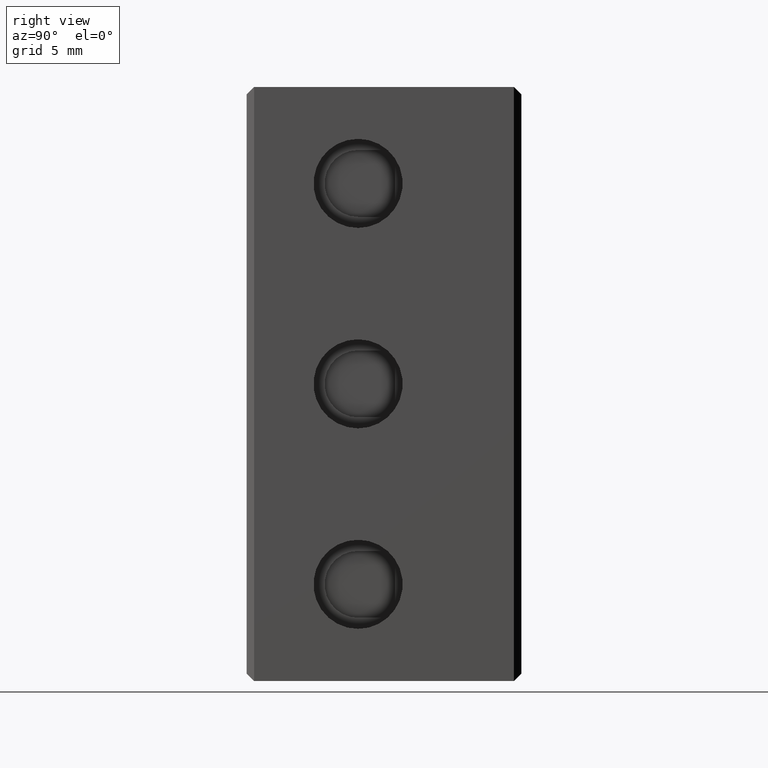
[diagram: clean part render]
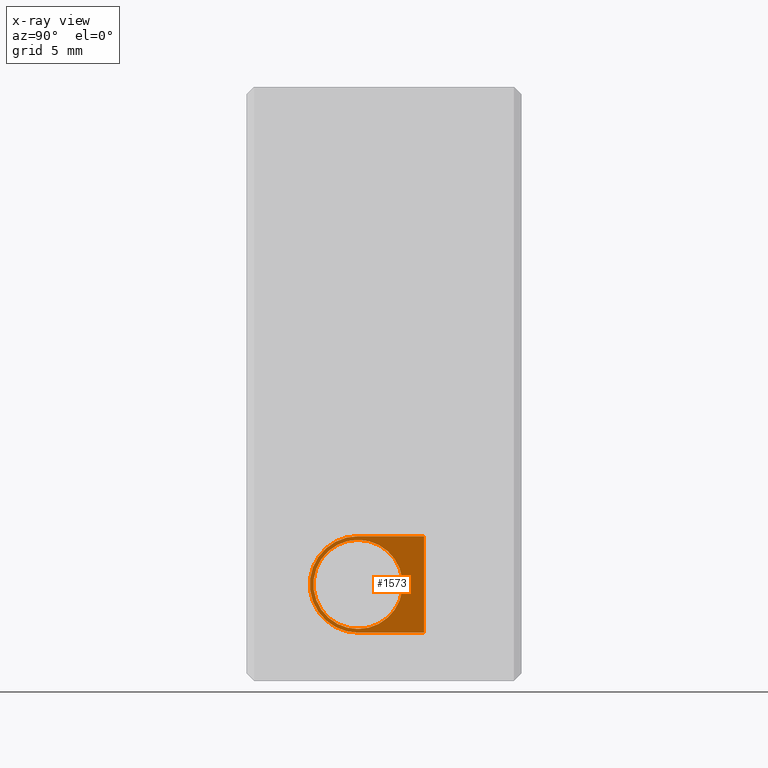
[diagram: x-ray — body ghosted, one internal face saturated and labeled with its STEP entity id]
A machine part, right view, then the same camera in x-ray: the body is ghosted and one INTERNAL B-rep face — a face not visible from any outside direction — is saturated and labeled: STEP entity #1573.
In plain terms, the highlighted planar face has unit normal (1, -0, 0).
Its self-contained STEP definition (entity closure, byte-faithful):
#172 = EDGE_LOOP ( 'NONE', ( #4283, #4260 ) ) ;
#264 = EDGE_LOOP ( 'NONE', ( #4213, #4229, #4239, #4277 ) ) ;
#369 = VERTEX_POINT ( 'NONE', #5477 ) ;
#397 = VERTEX_POINT ( 'NONE', #5500 ) ;
#406 = VERTEX_POINT ( 'NONE', #4571 ) ;
#408 = VERTEX_POINT ( 'NONE', #4561 ) ;
#698 = VERTEX_POINT ( 'NONE', #4858 ) ;
#711 = VERTEX_POINT ( 'NONE', #4898 ) ;
#930 = EDGE_CURVE ( 'NONE', #369, #397, #5458, .T. ) ;
#934 = EDGE_CURVE ( 'NONE', #406, #369, #2957, .T. ) ;
#960 = EDGE_CURVE ( 'NONE', #397, #408, #2341, .T. ) ;
#969 = EDGE_CURVE ( 'NONE', #408, #406, #2368, .T. ) ;
#1022 = EDGE_CURVE ( 'NONE', #711, #698, #3124, .T. ) ;
#1383 = DIRECTION ( 'NONE',  ( 1.000000000000000000, 0.0000000000000000000, 0.0000000000000000000 ) ) ;
#1399 = DIRECTION ( 'NONE',  ( 0.0000000000000000000, 0.0000000000000000000, -1.000000000000000000 ) ) ;
#1426 = CARTESIAN_POINT ( 'NONE',  ( 19.19999999999999900, 7.500000000000000000, -33.50000000000000000 ) ) ;
#1477 = EDGE_CURVE ( 'NONE', #698, #711, #7877, .T. ) ;
#1573 = ADVANCED_FACE ( 'NONE', ( #7785, #7779 ), #7761, .F. ) ;
#2341 = LINE ( 'NONE', #2352, #2962 ) ;
#2352 = CARTESIAN_POINT ( 'NONE',  ( 19.19999999999999900, 11.95000000000000100, -33.50000000000000000 ) ) ;
#2357 = DIRECTION ( 'NONE',  ( -0.0000000000000000000, -1.000000000000000000, -0.0000000000000000000 ) ) ;
#2358 = DIRECTION ( 'NONE',  ( -0.0000000000000000000, -0.0000000000000000000, 1.000000000000000000 ) ) ;
#2361 = CARTESIAN_POINT ( 'NONE',  ( 19.19999999999999900, 7.500000000000000000, -30.25000000000000000 ) ) ;
#2368 = LINE ( 'NONE', #2361, #2993 ) ;
#2957 = CIRCLE ( 'NONE', #2997, 3.250000000000002700 ) ;
#2962 = VECTOR ( 'NONE', #2358, 1000.000000000000000 ) ;
#2969 = VECTOR ( 'NONE', #5447, 1000.000000000000000 ) ;
#2993 = VECTOR ( 'NONE', #2357, 1000.000000000000000 ) ;
#2997 = AXIS2_PLACEMENT_3D ( 'NONE', #5450, #5442, #5457 ) ;
#3124 = CIRCLE ( 'NONE', #3136, 2.999999999999995600 ) ;
#3136 = AXIS2_PLACEMENT_3D ( 'NONE', #1426, #1383, #1399 ) ;
#4213 = ORIENTED_EDGE ( 'NONE', *, *, #969, .F. ) ;
#4229 = ORIENTED_EDGE ( 'NONE', *, *, #960, .F. ) ;
#4239 = ORIENTED_EDGE ( 'NONE', *, *, #930, .F. ) ;
#4260 = ORIENTED_EDGE ( 'NONE', *, *, #1477, .T. ) ;
#4277 = ORIENTED_EDGE ( 'NONE', *, *, #934, .F. ) ;
#4283 = ORIENTED_EDGE ( 'NONE', *, *, #1022, .T. ) ;
#4561 = CARTESIAN_POINT ( 'NONE',  ( 19.19999999999999900, 11.95000000000000100, -30.25000000000000000 ) ) ;
#4571 = CARTESIAN_POINT ( 'NONE',  ( 19.20000000000000300, 7.500000000000000000, -30.25000000000000000 ) ) ;
#4858 = CARTESIAN_POINT ( 'NONE',  ( 19.19999999999999900, 7.500000000000000000, -30.50000000000000700 ) ) ;
#4898 = CARTESIAN_POINT ( 'NONE',  ( 19.19999999999999900, 7.500000000000000000, -36.50000000000000000 ) ) ;
#5442 = DIRECTION ( 'NONE',  ( 1.000000000000000000, 0.0000000000000000000, 0.0000000000000000000 ) ) ;
#5447 = DIRECTION ( 'NONE',  ( 0.0000000000000000000, 1.000000000000000000, 0.0000000000000000000 ) ) ;
#5450 = CARTESIAN_POINT ( 'NONE',  ( 19.20000000000000300, 7.500000000000000000, -33.50000000000000000 ) ) ;
#5452 = CARTESIAN_POINT ( 'NONE',  ( 19.19999999999999900, 7.500000000000000000, -36.75000000000000000 ) ) ;
#5457 = DIRECTION ( 'NONE',  ( 0.0000000000000000000, 0.0000000000000000000, -1.000000000000000000 ) ) ;
#5458 = LINE ( 'NONE', #5452, #2969 ) ;
#5477 = CARTESIAN_POINT ( 'NONE',  ( 19.20000000000000300, 7.500000000000000000, -36.75000000000000700 ) ) ;
#5500 = CARTESIAN_POINT ( 'NONE',  ( 19.19999999999999900, 11.95000000000000100, -36.75000000000000000 ) ) ;
#6732 = AXIS2_PLACEMENT_3D ( 'NONE', #7751, #7749, #7757 ) ;
#7572 = DIRECTION ( 'NONE',  ( 1.000000000000000000, 0.0000000000000000000, 0.0000000000000000000 ) ) ;
#7596 = CARTESIAN_POINT ( 'NONE',  ( 19.19999999999999900, 7.500000000000000000, -33.50000000000000000 ) ) ;
#7597 = DIRECTION ( 'NONE',  ( 0.0000000000000000000, 0.0000000000000000000, -1.000000000000000000 ) ) ;
#7749 = DIRECTION ( 'NONE',  ( 1.000000000000000000, -0.0000000000000000000, 0.0000000000000000000 ) ) ;
#7751 = CARTESIAN_POINT ( 'NONE',  ( 19.19999999999999900, 7.500000000000000000, -33.50000000000000000 ) ) ;
#7757 = DIRECTION ( 'NONE',  ( 0.0000000000000000000, 0.0000000000000000000, -1.000000000000000000 ) ) ;
#7761 = PLANE ( 'NONE',  #6732 ) ;
#7779 = FACE_OUTER_BOUND ( 'NONE', #264, .T. ) ;
#7785 = FACE_BOUND ( 'NONE', #172, .T. ) ;
#7877 = CIRCLE ( 'NONE', #7881, 2.999999999999995600 ) ;
#7881 = AXIS2_PLACEMENT_3D ( 'NONE', #7596, #7572, #7597 ) ;